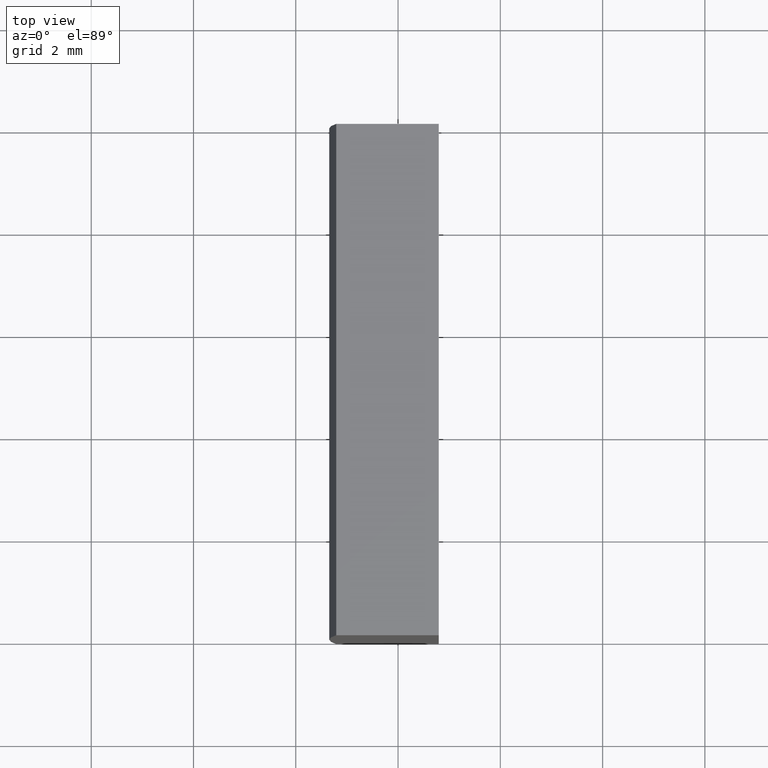
[diagram: clean part render]
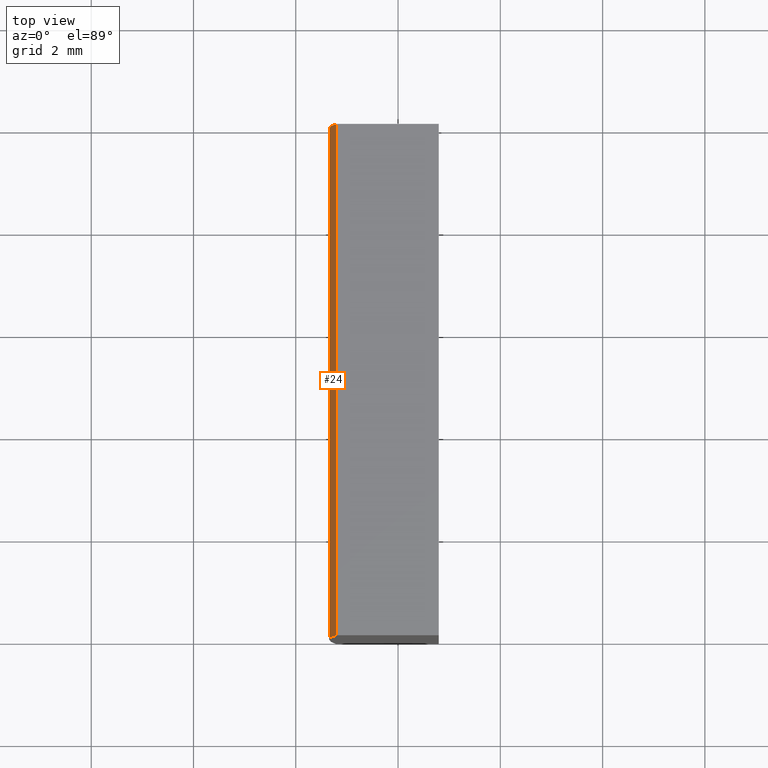
[diagram: same view with one face highlighted and labeled with its STEP entity id]
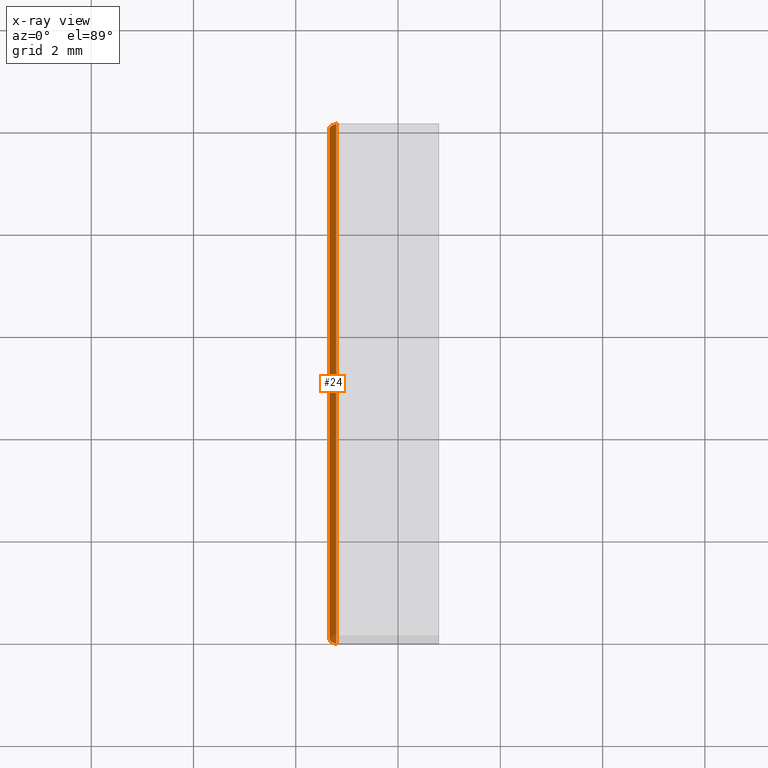
[diagram: x-ray of the same camera — body ghosted, the highlighted face saturated]
A machine part, top view. The second image highlights one B-rep face of the part: STEP entity #24.
The next image is the same camera in x-ray: the body ghosted, the highlighted face saturated — about 1% of this face is hidden behind the body in this view.
In plain terms, the highlighted cylindrical surface (partial cylindrical patch) has radius 91.7 mm, axis along (-0, -1, -0).
Its self-contained STEP definition (entity closure, byte-faithful):
#4 = DIRECTION ( 'NONE',  ( -0.0000000000000000000, -1.000000000000000000, -0.0000000000000000000 ) ) ;
#6 = DIRECTION ( 'NONE',  ( 0.0000000000000000000, 1.000000000000000000, 0.0000000000000000000 ) ) ;
#13 = EDGE_CURVE ( 'NONE', #197, #67, #171, .T. ) ;
#17 = CIRCLE ( 'NONE', #134, 91.70000000000000300 ) ;
#24 = ADVANCED_FACE ( 'NONE', ( #147 ), #71, .T. ) ;
#25 = AXIS2_PLACEMENT_3D ( 'NONE', #33, #173, #50 ) ;
#33 = CARTESIAN_POINT ( 'NONE',  ( 4.355204334851265500, 10.00000000000000000, 4.286263797015675000E-017 ) ) ;
#39 = CARTESIAN_POINT ( 'NONE',  ( -87.20838012971630300, 10.00000000000000000, 5.000000000000000000 ) ) ;
#43 = CARTESIAN_POINT ( 'NONE',  ( 4.355204334851265500, 0.0000000000000000000, 4.286263797015675000E-017 ) ) ;
#48 = ORIENTED_EDGE ( 'NONE', *, *, #113, .T. ) ;
#50 = DIRECTION ( 'NONE',  ( 0.0000000000000000000, 0.0000000000000000000, -1.000000000000000000 ) ) ;
#53 = ORIENTED_EDGE ( 'NONE', *, *, #158, .T. ) ;
#63 = ORIENTED_EDGE ( 'NONE', *, *, #149, .F. ) ;
#64 = VECTOR ( 'NONE', #179, 1000.000000000000000 ) ;
#66 = AXIS2_PLACEMENT_3D ( 'NONE', #43, #6, #141 ) ;
#67 = VERTEX_POINT ( 'NONE', #146 ) ;
#71 = CYLINDRICAL_SURFACE ( 'NONE', #25, 91.70000000000000300 ) ;
#96 = LINE ( 'NONE', #131, #64 ) ;
#113 = EDGE_CURVE ( 'NONE', #117, #67, #176, .T. ) ;
#116 = CARTESIAN_POINT ( 'NONE',  ( 4.355204334851265500, 10.00000000000000000, 4.286263797015675000E-017 ) ) ;
#117 = VERTEX_POINT ( 'NONE', #157 ) ;
#128 = CARTESIAN_POINT ( 'NONE',  ( -87.20838012971630300, 10.00000000000000000, 5.000000000000000000 ) ) ;
#131 = CARTESIAN_POINT ( 'NONE',  ( -87.20838012971630300, 10.00000000000000000, -5.000000000000000000 ) ) ;
#134 = AXIS2_PLACEMENT_3D ( 'NONE', #116, #185, #175 ) ;
#141 = DIRECTION ( 'NONE',  ( 0.0000000000000000000, 0.0000000000000000000, 1.000000000000000000 ) ) ;
#145 = VERTEX_POINT ( 'NONE', #182 ) ;
#146 = CARTESIAN_POINT ( 'NONE',  ( -87.20838012971630300, 0.0000000000000000000, 5.000000000000000000 ) ) ;
#147 = FACE_OUTER_BOUND ( 'NONE', #201, .T. ) ;
#149 = EDGE_CURVE ( 'NONE', #145, #197, #17, .T. ) ;
#151 = VECTOR ( 'NONE', #4, 1000.000000000000000 ) ;
#157 = CARTESIAN_POINT ( 'NONE',  ( -87.20838012971630300, 0.0000000000000000000, -5.000000000000000000 ) ) ;
#158 = EDGE_CURVE ( 'NONE', #145, #117, #96, .T. ) ;
#163 = ORIENTED_EDGE ( 'NONE', *, *, #13, .F. ) ;
#171 = LINE ( 'NONE', #39, #151 ) ;
#173 = DIRECTION ( 'NONE',  ( -0.0000000000000000000, -1.000000000000000000, -0.0000000000000000000 ) ) ;
#175 = DIRECTION ( 'NONE',  ( 0.0000000000000000000, 0.0000000000000000000, 1.000000000000000000 ) ) ;
#176 = CIRCLE ( 'NONE', #66, 91.70000000000000300 ) ;
#179 = DIRECTION ( 'NONE',  ( -0.0000000000000000000, -1.000000000000000000, -0.0000000000000000000 ) ) ;
#182 = CARTESIAN_POINT ( 'NONE',  ( -87.20838012971630300, 10.00000000000000000, -5.000000000000000000 ) ) ;
#185 = DIRECTION ( 'NONE',  ( 0.0000000000000000000, 1.000000000000000000, 0.0000000000000000000 ) ) ;
#197 = VERTEX_POINT ( 'NONE', #128 ) ;
#201 = EDGE_LOOP ( 'NONE', ( #48, #163, #63, #53 ) ) ;